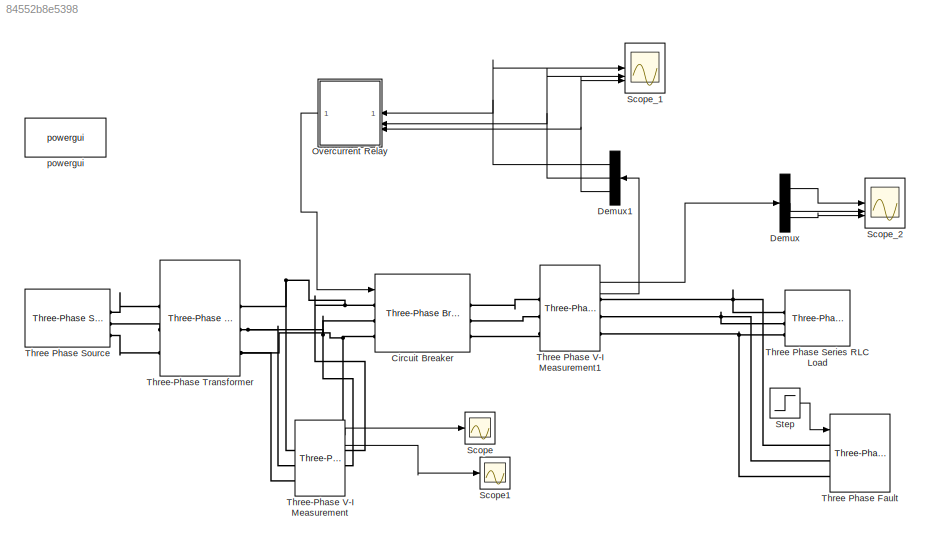
MODEL slx_84552b8e5398
KIND model
CONFIG AbsTol = auto
CONFIG EnableMultiTasking = off
CONFIG FixedStep = auto
CONFIG MaxStep = auto
CONFIG MinStep = auto
CONFIG RelTol = 1e-3
CONFIG SampleTimeConstraint = Unconstrained
CONFIG SolverName = VariableStepAuto
CONFIG StartTime = 0.0
CONFIG StopTime = 0.5
BLOCK [Reference] Circuit Breaker  REF=spsThreePhaseBreakerLib/Three-Phase Breaker
  LibrarySourceBlock = sps_lib/Power Grid Elements/Three-Phase Breaker
  SourceBlock = spsThreePhaseBreakerLib/Three-Phase Breaker
  SourceType = Three-Phase Breaker
BLOCK [Demux] Demux
  Outputs = 3
BLOCK [Demux] Demux1
  NameLocation = top
  Outputs = 3
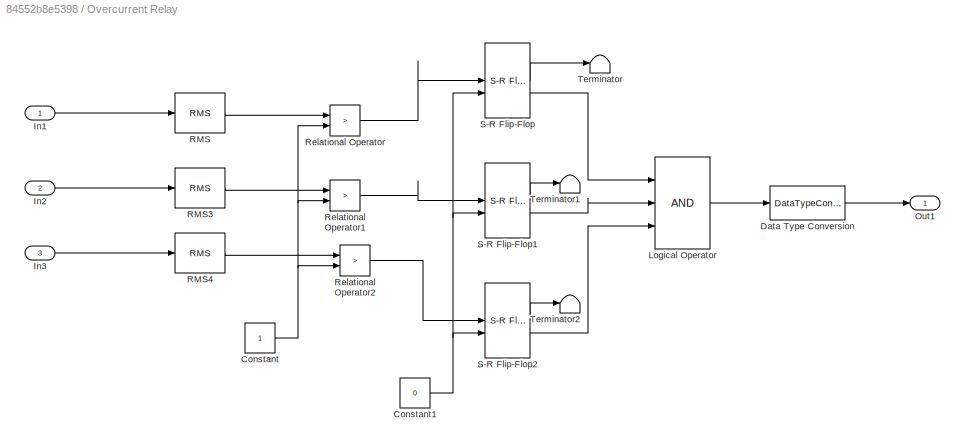
BLOCK [SubSystem] Overcurrent Relay
  NameLocation = top
BLOCK [Constant] Overcurrent Relay/Constant
  OutDataTypeStr = boolean
BLOCK [Constant] Overcurrent Relay/Constant1
  OutDataTypeStr = boolean
  Value = 0
BLOCK [DataTypeConversion] Overcurrent Relay/Data Type Conversion
  OutDataTypeStr = double
  RndMeth = Floor
  SaturateOnIntegerOverflow = off
BLOCK [Inport] Overcurrent Relay/In1
BLOCK [Inport] Overcurrent Relay/In2
  Port = 2
BLOCK [Inport] Overcurrent Relay/In3
  Port = 3
BLOCK [Logic] Overcurrent Relay/Logical Operator
  AllPortsSameDT = off
  Inputs = 3
  OutDataTypeStr = boolean
BLOCK [Outport] Overcurrent Relay/Out1
BLOCK [Reference] Overcurrent Relay/RMS  REF=spsRMSLib/RMS
  LibrarySourceBlock = sps_lib/Sensors and Measurements/RMS
  SourceBlock = spsRMSLib/RMS
  SourceType = RMS
BLOCK [Reference] Overcurrent Relay/RMS3  REF=spsRMSLib/RMS
  LibrarySourceBlock = sps_lib/Sensors and Measurements/RMS
  SourceBlock = spsRMSLib/RMS
  SourceType = RMS
BLOCK [Reference] Overcurrent Relay/RMS4  REF=spsRMSLib/RMS
  LibrarySourceBlock = sps_lib/Sensors and Measurements/RMS
  SourceBlock = spsRMSLib/RMS
  SourceType = RMS
BLOCK [RelationalOperator] Overcurrent Relay/Relational Operator
  InputSameDT = off
  Operator = >
  OutDataTypeStr = boolean
  RndMeth = Simplest
BLOCK [RelationalOperator] Overcurrent Relay/Relational Operator1
  InputSameDT = off
  Operator = >
  OutDataTypeStr = boolean
  RndMeth = Simplest
BLOCK [RelationalOperator] Overcurrent Relay/Relational Operator2
  InputSameDT = off
  Operator = >
  OutDataTypeStr = boolean
  RndMeth = Simplest
BLOCK [Reference] Overcurrent Relay/S-R Flip-Flop  REF=simulink_extras/Flip Flops/S-R
Flip-Flop
  SourceBlock = simulink_extras/Flip Flops/S-R\nFlip-Flop
  SourceType = SRFlipFlop
BLOCK [Reference] Overcurrent Relay/S-R Flip-Flop1  REF=simulink_extras/Flip Flops/S-R
Flip-Flop
  SourceBlock = simulink_extras/Flip Flops/S-R\nFlip-Flop
  SourceType = SRFlipFlop
BLOCK [Reference] Overcurrent Relay/S-R Flip-Flop2  REF=simulink_extras/Flip Flops/S-R
Flip-Flop
  SourceBlock = simulink_extras/Flip Flops/S-R\nFlip-Flop
  SourceType = SRFlipFlop
BLOCK [Terminator] Overcurrent Relay/Terminator
BLOCK [Terminator] Overcurrent Relay/Terminator1
BLOCK [Terminator] Overcurrent Relay/Terminator2
BLOCK [Scope] Scope
  Floating = off
  NumInputPorts = 1
  ScopeSpecificationString = Simulink.scopes.TimeScopeBlockCfg('CurrentConfiguration', extmgr.ConfigurationSet(extmgr.Configuration('Core','General UI',true),extmgr.Configuration('Core','Source UI',true),extmgr.Configuration('Sources','WiredSimulink',true,'DataLoggingVariableName','ScopeData1'),extmgr.Configuration('Visuals','Time Domain',true,'SerializedDisplays',{struct('MinYLimReal','-433.50678','MaxYLimReal','410.58044','...<+1487ch>
BLOCK [Scope] Scope1
  Floating = off
  NumInputPorts = 1
  ScopeSpecificationString = Simulink.scopes.TimeScopeBlockCfg('CurrentConfiguration', extmgr.ConfigurationSet(extmgr.Configuration('Core','General UI',true),extmgr.Configuration('Core','Source UI',true),extmgr.Configuration('Sources','WiredSimulink',true,'DataLoggingVariableName','ScopeData2'),extmgr.Configuration('Visuals','Time Domain',true,'SerializedDisplays',{struct('MinYLimReal','-1.00000','MaxYLimReal','1.00000','YLab...<+1473ch>
BLOCK [Scope] Scope_1
  Floating = off
  NumInputPorts = 3
  ScopeSpecificationString = Simulink.scopes.TimeScopeBlockCfg('CurrentConfiguration', extmgr.ConfigurationSet(extmgr.Configuration('Core','General UI',true),extmgr.Configuration('Core','Source UI',true),extmgr.Configuration('Sources','WiredSimulink',true,'DataLoggingVariableName','ScopeData1'),extmgr.Configuration('Visuals','Time Domain',true,'SerializedDisplays',{struct('MinYLimReal','-9208.91804','MaxYLimReal','10083.2354'...<+3297ch>
BLOCK [Scope] Scope_2
  Floating = off
  NumInputPorts = 3
  ScopeSpecificationString = Simulink.scopes.TimeScopeBlockCfg('CurrentConfiguration', extmgr.ConfigurationSet(extmgr.Configuration('Core','General UI',true,'FigureColor',[0 0 0]),extmgr.Configuration('Core','Source UI',true),extmgr.Configuration('Sources','WiredSimulink',true,'DataLoggingVariableName','ScopeData2'),extmgr.Configuration('Visuals','Time Domain',true,'SerializedDisplays',{struct('MinYLimReal','-293.02135','MaxY...<+3039ch>
BLOCK [Step] Step
  After = 0.5
  SampleTime = 0
  Time = 0.2
BLOCK [Reference] Three Phase Fault  REF=spsThreePhaseFaultLib/Three-Phase Fault
  LibrarySourceBlock = sps_lib/Power Grid Elements/Three-Phase Fault
  SourceBlock = spsThreePhaseFaultLib/Three-Phase Fault
  SourceType = Three-Phase Fault
BLOCK [Reference] Three Phase Series RLC Load  REF=spsThreePhaseSeriesRLCLoadLib/Three-Phase
Series RLC Load
  AttributesFormatString = \n
  LibrarySourceBlock = sps_lib/Passives/Three-Phase\nSeries RLC Load
  NameLocation = right
  SourceBlock = spsThreePhaseSeriesRLCLoadLib/Three-Phase\nSeries RLC Load
  SourceType = Three-Phase Series RLC Load
BLOCK [Reference] Three Phase Source  REF=spsThreePhaseSourceLib/Three-Phase Source
  LibrarySourceBlock = sps_lib/Sources/Three-Phase Source
  SourceBlock = spsThreePhaseSourceLib/Three-Phase Source
  SourceType = Three-Phase Source
BLOCK [Reference] Three Phase V-I Measurement1  REF=spsThreePhaseVIMeasurementLib/Three-Phase
V-I Measurement
  LibrarySourceBlock = sps_lib/Sensors and Measurements/Three-Phase\nV-I Measurement
  SourceBlock = spsThreePhaseVIMeasurementLib/Three-Phase\nV-I Measurement
  SourceType = Three-Phase VI Measurement
BLOCK [Reference] Three-Phase Transformer  REF=spsThreePhaseTransformerTwoWindingsLib/Three-Phase
Transformer
(Two Windings)
  LibrarySourceBlock = sps_lib/Power Grid Elements/Three-Phase\nTransformer\n(Two Windings)
  SourceBlock = spsThreePhaseTransformerTwoWindingsLib/Three-Phase\nTransformer\n(Two Windings)
  SourceType = Three-Phase Transformer (Two Windings)
BLOCK [Reference] Three-Phase V-I Measurement  REF=spsThreePhaseVIMeasurementLib/Three-Phase
V-I Measurement
  LibrarySourceBlock = sps_lib/Sensors and Measurements/Three-Phase\nV-I Measurement
  SourceBlock = spsThreePhaseVIMeasurementLib/Three-Phase\nV-I Measurement
  SourceType = Three-Phase VI Measurement
BLOCK [Reference] powergui  REF=sps_lib/powergui
  LibrarySourceBlock = sps_lib/powergui
  Priority = 1
  SourceBlock = sps_lib/powergui
  SourceType = PSB option menu block
NET Demux1:1 -> Overcurrent Relay:1, Scope_1:1
NET Demux1:2 -> Overcurrent Relay:2, Scope_1:2
NET Demux1:3 -> Overcurrent Relay:3, Scope_1:3
LINE Demux:1 -> Scope_2:1
LINE Demux:2 -> Scope_2:2
LINE Demux:3 -> Scope_2:3
NET Overcurrent Relay/Constant1:1 -> Overcurrent Relay/S-R Flip-Flop1:2, Overcurrent Relay/S-R Flip-Flop2:2, Overcurrent Relay/S-R Flip-Flop:2
NET Overcurrent Relay/Constant:1 -> Overcurrent Relay/Relational Operator1:2, Overcurrent Relay/Relational Operator2:2, Overcurrent Relay/Relational Operator:2
LINE Overcurrent Relay/Data Type Conversion:1 -> Overcurrent Relay/Out1:1
LINE Overcurrent Relay/In1:1 -> Overcurrent Relay/RMS:1
LINE Overcurrent Relay/In2:1 -> Overcurrent Relay/RMS3:1
LINE Overcurrent Relay/In3:1 -> Overcurrent Relay/RMS4:1
LINE Overcurrent Relay/Logical Operator:1 -> Overcurrent Relay/Data Type Conversion:1
LINE Overcurrent Relay/RMS3:1 -> Overcurrent Relay/Relational Operator1:1
LINE Overcurrent Relay/RMS4:1 -> Overcurrent Relay/Relational Operator2:1
LINE Overcurrent Relay/RMS:1 -> Overcurrent Relay/Relational Operator:1
LINE Overcurrent Relay/Relational Operator1:1 -> Overcurrent Relay/S-R Flip-Flop1:1
LINE Overcurrent Relay/Relational Operator2:1 -> Overcurrent Relay/S-R Flip-Flop2:1
LINE Overcurrent Relay/Relational Operator:1 -> Overcurrent Relay/S-R Flip-Flop:1
LINE Overcurrent Relay/S-R Flip-Flop1:1 -> Overcurrent Relay/Terminator1:1
LINE Overcurrent Relay/S-R Flip-Flop1:2 -> Overcurrent Relay/Logical Operator:2
LINE Overcurrent Relay/S-R Flip-Flop2:1 -> Overcurrent Relay/Terminator2:1
LINE Overcurrent Relay/S-R Flip-Flop2:2 -> Overcurrent Relay/Logical Operator:3
LINE Overcurrent Relay/S-R Flip-Flop:1 -> Overcurrent Relay/Terminator:1
LINE Overcurrent Relay/S-R Flip-Flop:2 -> Overcurrent Relay/Logical Operator:1
LINE Overcurrent Relay:1 -> Circuit Breaker:1
LINE Step:1 -> Three Phase Fault:1
LINE Three Phase V-I Measurement1:1 -> Demux:1
LINE Three Phase V-I Measurement1:2 -> Demux1:1
LINE Three-Phase V-I Measurement:1 -> Scope:1
LINE Three-Phase V-I Measurement:2 -> Scope1:1
PNET net1: Circuit Breaker:LConn1 -- Three-Phase Transformer:RConn1 -- Three-Phase V-I Measurement:LConn1 -- Three-Phase V-I Measurement:RConn1
PNET net2: Circuit Breaker:LConn2 -- Three-Phase Transformer:RConn2 -- Three-Phase V-I Measurement:LConn2 -- Three-Phase V-I Measurement:RConn2
PNET net3: Circuit Breaker:LConn3 -- Three-Phase Transformer:RConn3 -- Three-Phase V-I Measurement:LConn3 -- Three-Phase V-I Measurement:RConn3
PLINE Circuit Breaker:RConn1 -- Three Phase V-I Measurement1:LConn1
PLINE Circuit Breaker:RConn2 -- Three Phase V-I Measurement1:LConn2
PLINE Circuit Breaker:RConn3 -- Three Phase V-I Measurement1:LConn3
PNET net4: Three Phase Fault:LConn1 -- Three Phase Series RLC Load:LConn1 -- Three Phase V-I Measurement1:RConn1
PNET net5: Three Phase Fault:LConn2 -- Three Phase Series RLC Load:LConn2 -- Three Phase V-I Measurement1:RConn2
PNET net6: Three Phase Fault:LConn3 -- Three Phase Series RLC Load:LConn3 -- Three Phase V-I Measurement1:RConn3
PLINE Three Phase Source:RConn1 -- Three-Phase Transformer:LConn1
PLINE Three Phase Source:RConn2 -- Three-Phase Transformer:LConn2
PLINE Three Phase Source:RConn3 -- Three-Phase Transformer:LConn3
note: NET lines group one-source signal fan-out (src -> all destinations, sorted); 1:1 wires keep LINE; PNET lines group multi-terminal physical nets as a canonical sorted terminal list (undirected conserving connections); 2-terminal nets keep the pairwise PLINE form
